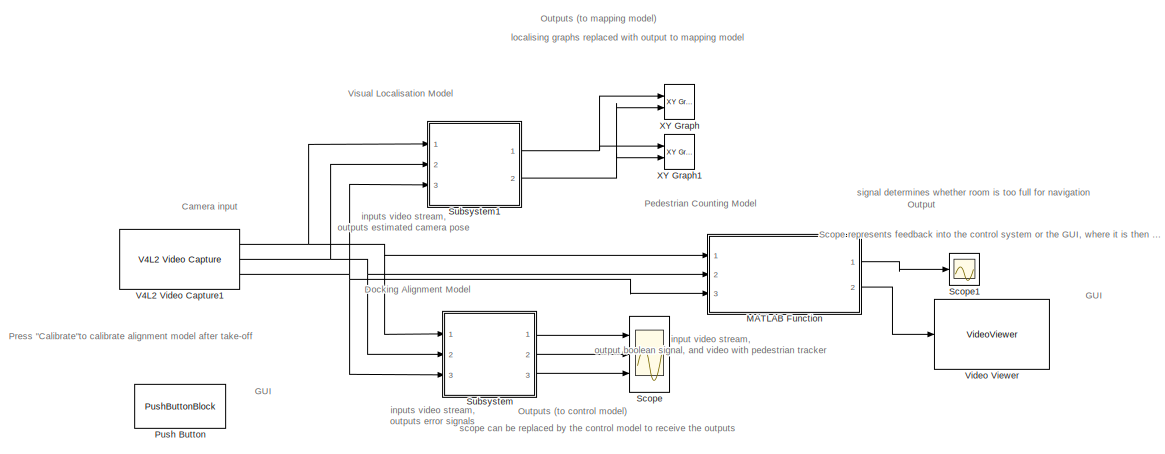
[diagram: root canvas - part 1/2, central region]
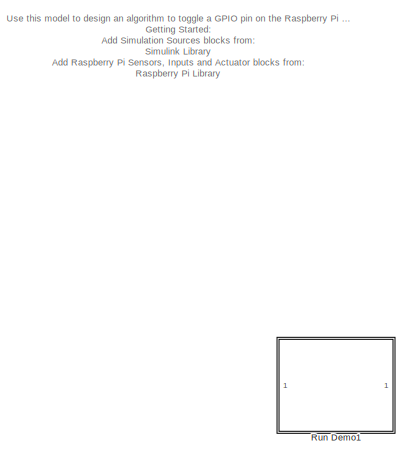
[diagram: root canvas - part 2/2, middle left region]
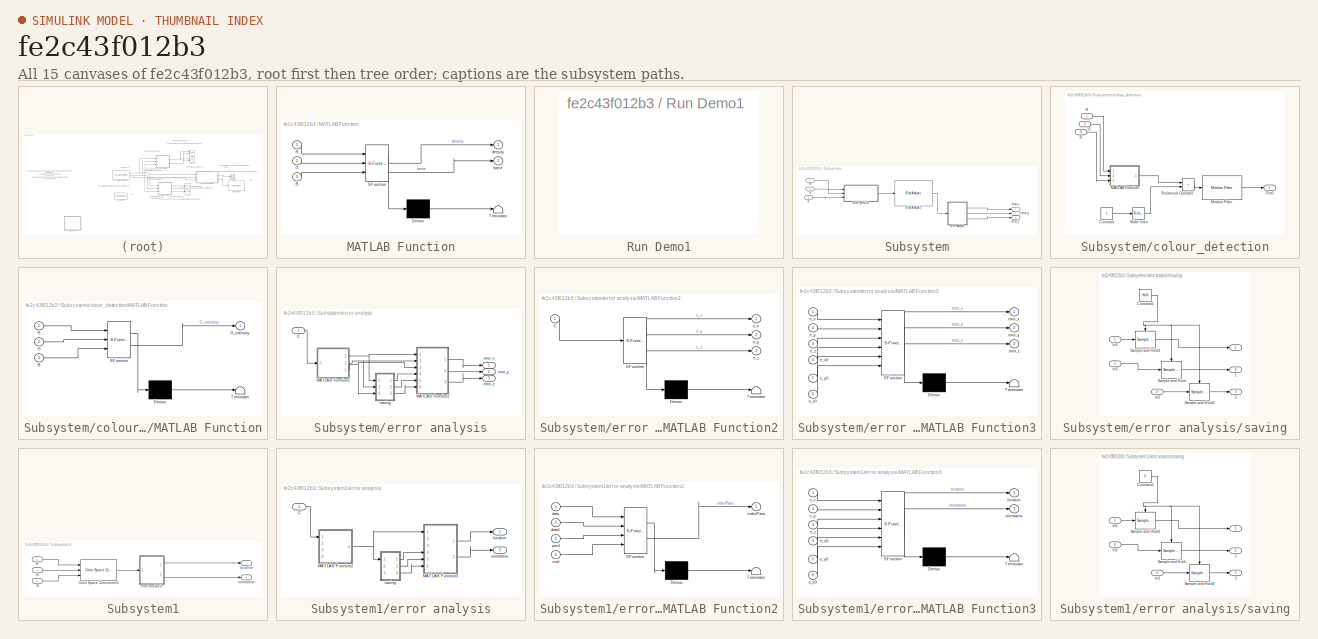
[diagram: thumbnail index - all 15 canvases of the model, root first then tree order]
MODEL slx_fe2c43f012b3
KIND model
CONFIG AbsTol = auto
CONFIG EnableMultiTasking = on
CONFIG FixedStep = auto
CONFIG MaxStep = auto
CONFIG MinStep = auto
CONFIG RelTol = 1e-3
CONFIG SampleTimeConstraint = Unconstrained
CONFIG Solver = ode45
CONFIG SolverName = ode45
CONFIG StartTime = 0.0
CONFIG StopTime = 10.0
BLOCK [SubSystem] MATLAB Function
  ErrorFcn = Stateflow.Translate.translate
  PermitHierarchicalResolution = ExplicitOnly
  Ports = [3, 2]
  RequestExecContextInheritance = off
  SFBlockType = MATLAB Function
  TreatAsAtomicUnit = on
BLOCK [Demux] MATLAB Function/ Demux 
  Outputs = 1
  Ports = [1, 1]
BLOCK [S-Function] MATLAB Function/ SFunction 
  EnableBusSupport = on
  FunctionName = sf_sfun
  PortCounts = [3 3]
  Ports = [3, 3]
  SFcnIsStateOwnerBlock = off
  SFunctionDeploymentMode = off
  Tag = Stateflow S-Function 5
BLOCK [Terminator] MATLAB Function/ Terminator 
BLOCK [Inport] MATLAB Function/B
  Port = 3
BLOCK [Inport] MATLAB Function/G
  Port = 2
BLOCK [Inport] MATLAB Function/R
BLOCK [Outport] MATLAB Function/density
BLOCK [Outport] MATLAB Function/frame
  Port = 2
BLOCK [PushButtonBlock] Push Button
  ButtonText = Callibrate
BLOCK [SubSystem] Run Demo1
  Description = Controls host-side RTDX processing.
  Ports = []
  RequestExecContextInheritance = off
  ShowPortLabels = none
  UserDataPersistent = on
BLOCK [Scope] Scope
  Floating = off
  NumInputPorts = 3
  Ports = [3]
  ScopeSpecificationString = Simulink.scopes.TimeScopeBlockCfg('CurrentConfiguration', extmgr.ConfigurationSet(extmgr.Configuration('Core','General UI',true),extmgr.Configuration('Core','Source UI',true),extmgr.Configuration('Sources','WiredSimulink',true),extmgr.Configuration('Visuals','Time Domain',true,'SerializedDisplays',{struct('MinYLimReal','-22.18632','MaxYLimReal','63.88228','YLabelReal','','MinYLimMag','0.00000','Ma...<+1409ch>
BLOCK [Scope] Scope1
  Floating = off
  NumInputPorts = 1
  Ports = [1]
  ScopeSpecificationString = Simulink.scopes.TimeScopeBlockCfg('CurrentConfiguration', extmgr.ConfigurationSet(extmgr.Configuration('Core','General UI',true),extmgr.Configuration('Core','Source UI',true),extmgr.Configuration('Sources','WiredSimulink',true,'DataLoggingVariableName','ScopeData1'),extmgr.Configuration('Visuals','Time Domain',true),extmgr.Configuration('Tools','Plot Navigation',true),extmgr.Configuration('Tools',...<+40ch>
BLOCK [SubSystem] Subsystem
  Ports = [3, 3]
  RequestExecContextInheritance = off
BLOCK [Inport] Subsystem/B
  Port = 3
BLOCK [Reference] Subsystem/Blob Analysis  REF=visionstatistics/Blob Analysis
  Ports = [1, 1]
  SourceBlock = visionstatistics/Blob Analysis
  SourceProductBaseCode = VP
  SourceType = Blob Analysis
  Tag = vipblks_row_conv
BLOCK [Inport] Subsystem/G
  Port = 2
BLOCK [Inport] Subsystem/R
BLOCK [SubSystem] Subsystem/colour_detection
  Ports = [3, 1]
  RequestExecContextInheritance = off
BLOCK [Inport] Subsystem/colour_detection/B
  Port = 3
BLOCK [Constant] Subsystem/colour_detection/Constant
BLOCK [Inport] Subsystem/colour_detection/G
  Port = 2
BLOCK [SubSystem] Subsystem/colour_detection/MATLAB Function
  ErrorFcn = Stateflow.Translate.translate
  PermitHierarchicalResolution = ExplicitOnly
  Ports = [3, 1]
  RequestExecContextInheritance = off
  SFBlockType = MATLAB Function
  TreatAsAtomicUnit = on
BLOCK [Demux] Subsystem/colour_detection/MATLAB Function/ Demux 
  Outputs = 1
  Ports = [1, 1]
BLOCK [S-Function] Subsystem/colour_detection/MATLAB Function/ SFunction 
  EnableBusSupport = on
  FunctionName = sf_sfun
  PortCounts = [3 2]
  Ports = [3, 2]
  SFcnIsStateOwnerBlock = off
  SFunctionDeploymentMode = off
  Tag = Stateflow S-Function 2
BLOCK [Terminator] Subsystem/colour_detection/MATLAB Function/ Terminator 
BLOCK [Inport] Subsystem/colour_detection/MATLAB Function/B
  Port = 3
BLOCK [Inport] Subsystem/colour_detection/MATLAB Function/G
  Port = 2
BLOCK [Outport] Subsystem/colour_detection/MATLAB Function/G_intensity
BLOCK [Inport] Subsystem/colour_detection/MATLAB Function/R
BLOCK [Reference] Subsystem/colour_detection/Median Filter  REF=visionanalysis/Median Filter
  Ports = [1, 1]
  SourceBlock = visionanalysis/Median Filter
  SourceProductBaseCode = VP
  SourceType = Median Filter
BLOCK [Outport] Subsystem/colour_detection/Out1
BLOCK [Inport] Subsystem/colour_detection/R
BLOCK [RelationalOperator] Subsystem/colour_detection/Relational Operator
  InputSameDT = off
  Operator = >
  OutDataTypeStr = boolean
  Ports = [2, 1]
  RndMeth = Simplest
BLOCK [Reference] Subsystem/colour_detection/Slider Gain  REF=simulink/Math
Operations/Slider
Gain
  Ports = [1, 1]
  SourceBlock = simulink/Math\nOperations/Slider\nGain
  SourceProductBaseCode = SL
  SourceType = Slider Gain
BLOCK [SubSystem] Subsystem/error analysis
  Ports = [1, 3]
  RequestExecContextInheritance = off
BLOCK [Inport] Subsystem/error analysis/C
BLOCK [SubSystem] Subsystem/error analysis/MATLAB Function2
  ErrorFcn = Stateflow.Translate.translate
  PermitHierarchicalResolution = ExplicitOnly
  Ports = [1, 3]
  RequestExecContextInheritance = off
  SFBlockType = MATLAB Function
  TreatAsAtomicUnit = on
BLOCK [Demux] Subsystem/error analysis/MATLAB Function2/ Demux 
  Outputs = 1
  Ports = [1, 1]
BLOCK [S-Function] Subsystem/error analysis/MATLAB Function2/ SFunction 
  EnableBusSupport = on
  FunctionName = sf_sfun
  PortCounts = [1 4]
  Ports = [1, 4]
  SFcnIsStateOwnerBlock = off
  SFunctionDeploymentMode = off
  Tag = Stateflow S-Function 3
BLOCK [Terminator] Subsystem/error analysis/MATLAB Function2/ Terminator 
BLOCK [Inport] Subsystem/error analysis/MATLAB Function2/C
BLOCK [Outport] Subsystem/error analysis/MATLAB Function2/e_x
BLOCK [Outport] Subsystem/error analysis/MATLAB Function2/e_y
  Port = 2
BLOCK [Outport] Subsystem/error analysis/MATLAB Function2/e_z
  Port = 3
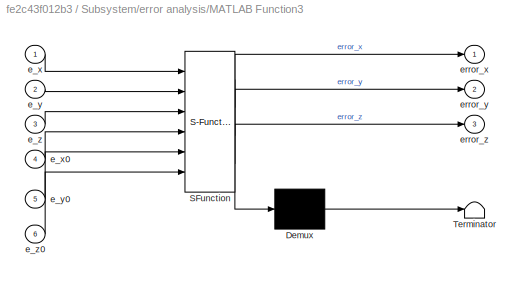
BLOCK [SubSystem] Subsystem/error analysis/MATLAB Function3
  ErrorFcn = Stateflow.Translate.translate
  PermitHierarchicalResolution = ExplicitOnly
  Ports = [6, 3]
  RequestExecContextInheritance = off
  SFBlockType = MATLAB Function
  TreatAsAtomicUnit = on
BLOCK [Demux] Subsystem/error analysis/MATLAB Function3/ Demux 
  Outputs = 1
  Ports = [1, 1]
BLOCK [S-Function] Subsystem/error analysis/MATLAB Function3/ SFunction 
  EnableBusSupport = on
  FunctionName = sf_sfun
  PortCounts = [6 4]
  Ports = [6, 4]
  SFcnIsStateOwnerBlock = off
  SFunctionDeploymentMode = off
  Tag = Stateflow S-Function 4
BLOCK [Terminator] Subsystem/error analysis/MATLAB Function3/ Terminator 
BLOCK [Inport] Subsystem/error analysis/MATLAB Function3/e_x
BLOCK [Inport] Subsystem/error analysis/MATLAB Function3/e_x0
  Port = 4
BLOCK [Inport] Subsystem/error analysis/MATLAB Function3/e_y
  Port = 2
BLOCK [Inport] Subsystem/error analysis/MATLAB Function3/e_y0
  Port = 5
BLOCK [Inport] Subsystem/error analysis/MATLAB Function3/e_z
  Port = 3
BLOCK [Inport] Subsystem/error analysis/MATLAB Function3/e_z0
  Port = 6
BLOCK [Outport] Subsystem/error analysis/MATLAB Function3/error_x
BLOCK [Outport] Subsystem/error analysis/MATLAB Function3/error_y
  Port = 2
BLOCK [Outport] Subsystem/error analysis/MATLAB Function3/error_z
  Port = 3
BLOCK [Outport] Subsystem/error analysis/error_x
BLOCK [Outport] Subsystem/error analysis/error_y
  Port = 2
BLOCK [Outport] Subsystem/error analysis/error_z
  Port = 3
BLOCK [SubSystem] Subsystem/error analysis/saving
  Ports = [3, 3]
  RequestExecContextInheritance = off
BLOCK [Outport] Subsystem/error analysis/saving/ 
BLOCK [Outport] Subsystem/error analysis/saving/ 1
  Port = 2
BLOCK [Outport] Subsystem/error analysis/saving/ 2
  Port = 3
BLOCK [Constant] Subsystem/error analysis/saving/Constant1
  Value = NaN
BLOCK [Inport] Subsystem/error analysis/saving/In1
BLOCK [Inport] Subsystem/error analysis/saving/In2
  Port = 2
BLOCK [Inport] Subsystem/error analysis/saving/In3
  Port = 3
BLOCK [Reference] Subsystem/error analysis/saving/Sample and Hold  REF=dspsigops/Sample
and Hold
  Ports = [1, 1, 0, 1]
  SourceBlock = dspsigops/Sample\nand Hold
  SourceProductBaseCode = DS
  SourceType = Sample and Hold
BLOCK [Reference] Subsystem/error analysis/saving/Sample and Hold1  REF=dspsigops/Sample
and Hold
  Ports = [1, 1, 0, 1]
  SourceBlock = dspsigops/Sample\nand Hold
  SourceProductBaseCode = DS
  SourceType = Sample and Hold
BLOCK [Reference] Subsystem/error analysis/saving/Sample and Hold2  REF=dspsigops/Sample
and Hold
  Ports = [1, 1, 0, 1]
  SourceBlock = dspsigops/Sample\nand Hold
  SourceProductBaseCode = DS
  SourceType = Sample and Hold
BLOCK [Outport] Subsystem/error_x
BLOCK [Outport] Subsystem/error_y
  Port = 2
BLOCK [Outport] Subsystem/error_z
  Port = 3
BLOCK [SubSystem] Subsystem1
  Ports = [3, 2]
  RequestExecContextInheritance = off
BLOCK [Inport] Subsystem1/B
  Port = 3
BLOCK [Reference] Subsystem1/Color Space Conversion1  REF=visionconversions/Color Space
 Conversion
  Ports = [3, 1]
  SourceBlock = visionconversions/Color Space\n Conversion
  SourceProductBaseCode = VP
  SourceType = Color Space Conversion
BLOCK [Inport] Subsystem1/G
  Port = 2
BLOCK [Inport] Subsystem1/R
BLOCK [SubSystem] Subsystem1/error analysis
  Ports = [1, 2]
  RequestExecContextInheritance = off
BLOCK [Inport] Subsystem1/error analysis/C
BLOCK [SubSystem] Subsystem1/error analysis/MATLAB Function2
  ErrorFcn = Stateflow.Translate.translate
  PermitHierarchicalResolution = ExplicitOnly
  Ports = [4, 1]
  RequestExecContextInheritance = off
  SFBlockType = MATLAB Function
  TreatAsAtomicUnit = on
BLOCK [Demux] Subsystem1/error analysis/MATLAB Function2/ Demux 
  Outputs = 1
  Ports = [1, 1]
BLOCK [S-Function] Subsystem1/error analysis/MATLAB Function2/ SFunction 
  EnableBusSupport = on
  FunctionName = sf_sfun
  PortCounts = [4 2]
  Ports = [4, 2]
  SFcnIsStateOwnerBlock = off
  SFunctionDeploymentMode = off
  Tag = Stateflow S-Function 8
BLOCK [Terminator] Subsystem1/error analysis/MATLAB Function2/ Terminator 
BLOCK [Inport] Subsystem1/error analysis/MATLAB Function2/currI
  Port = 4
BLOCK [Inport] Subsystem1/error analysis/MATLAB Function2/data
BLOCK [Inport] Subsystem1/error analysis/MATLAB Function2/data1
  Port = 2
BLOCK [Outport] Subsystem1/error analysis/MATLAB Function2/indexPairs
BLOCK [Inport] Subsystem1/error analysis/MATLAB Function2/prevI
  Port = 3
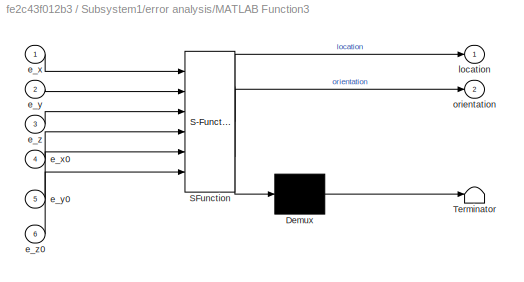
BLOCK [SubSystem] Subsystem1/error analysis/MATLAB Function3
  ErrorFcn = Stateflow.Translate.translate
  PermitHierarchicalResolution = ExplicitOnly
  Ports = [6, 2]
  RequestExecContextInheritance = off
  SFBlockType = MATLAB Function
  TreatAsAtomicUnit = on
BLOCK [Demux] Subsystem1/error analysis/MATLAB Function3/ Demux 
  Outputs = 1
  Ports = [1, 1]
BLOCK [S-Function] Subsystem1/error analysis/MATLAB Function3/ SFunction 
  EnableBusSupport = on
  FunctionName = sf_sfun
  PortCounts = [6 3]
  Ports = [6, 3]
  SFcnIsStateOwnerBlock = off
  SFunctionDeploymentMode = off
  Tag = Stateflow S-Function 9
BLOCK [Terminator] Subsystem1/error analysis/MATLAB Function3/ Terminator 
BLOCK [Inport] Subsystem1/error analysis/MATLAB Function3/e_x
BLOCK [Inport] Subsystem1/error analysis/MATLAB Function3/e_x0
  Port = 4
BLOCK [Inport] Subsystem1/error analysis/MATLAB Function3/e_y
  Port = 2
BLOCK [Inport] Subsystem1/error analysis/MATLAB Function3/e_y0
  Port = 5
BLOCK [Inport] Subsystem1/error analysis/MATLAB Function3/e_z
  Port = 3
BLOCK [Inport] Subsystem1/error analysis/MATLAB Function3/e_z0
  Port = 6
BLOCK [Outport] Subsystem1/error analysis/MATLAB Function3/location
BLOCK [Outport] Subsystem1/error analysis/MATLAB Function3/orientation
  Port = 2
BLOCK [Outport] Subsystem1/error analysis/location
BLOCK [Outport] Subsystem1/error analysis/orientation
  Port = 2
BLOCK [SubSystem] Subsystem1/error analysis/saving
  Ports = [3, 3]
  RequestExecContextInheritance = off
BLOCK [Outport] Subsystem1/error analysis/saving/ 
BLOCK [Outport] Subsystem1/error analysis/saving/ 1
  Port = 2
BLOCK [Outport] Subsystem1/error analysis/saving/ 2
  Port = 3
BLOCK [Constant] Subsystem1/error analysis/saving/Constant1
  Value = 0
BLOCK [Inport] Subsystem1/error analysis/saving/In1
BLOCK [Inport] Subsystem1/error analysis/saving/In2
  Port = 2
BLOCK [Inport] Subsystem1/error analysis/saving/In3
  Port = 3
BLOCK [Reference] Subsystem1/error analysis/saving/Sample and Hold  REF=dspsigops/Sample
and Hold
  Ports = [1, 1, 0, 1]
  SourceBlock = dspsigops/Sample\nand Hold
  SourceProductBaseCode = DS
  SourceType = Sample and Hold
BLOCK [Reference] Subsystem1/error analysis/saving/Sample and Hold1  REF=dspsigops/Sample
and Hold
  Ports = [1, 1, 0, 1]
  SourceBlock = dspsigops/Sample\nand Hold
  SourceProductBaseCode = DS
  SourceType = Sample and Hold
BLOCK [Reference] Subsystem1/error analysis/saving/Sample and Hold2  REF=dspsigops/Sample
and Hold
  Ports = [1, 1, 0, 1]
  SourceBlock = dspsigops/Sample\nand Hold
  SourceProductBaseCode = DS
  SourceType = Sample and Hold
BLOCK [Outport] Subsystem1/location
BLOCK [Outport] Subsystem1/orientation
  Port = 2
BLOCK [Reference] V4L2 Video Capture1  REF=embdlinuxlib/V4L2 Video Capture
  Ports = [0, 3]
  SourceBlock = embdlinuxlib/V4L2 Video Capture
  SourceProductBaseCode = SC_BEAGLEBONE_BLUE,RASPPI
  SourceType = V4L2 Video Capture
BLOCK [VideoViewer] Video Viewer
  FigPos = [2041 741 418 304]
  Ports = [1]
  ScopeSpecificationString = vipscopes.VideoViewerScopeCfg('CurrentConfiguration', extmgr.ConfigurationSet(extmgr.Configuration('Core','General UI',true),extmgr.Configuration('Core','Source UI',true),extmgr.Configuration('Sources','WiredSimulink',true),extmgr.Configuration('Visuals','Video',true),extmgr.Configuration('Tools','Image Navigation Tools',true),extmgr.Configuration('Tools','Image Tool',true),extmgr.Configuration('T...<+76ch>
BLOCK [Reference] XY Graph  REF=simulink/Sinks/XY Graph
  Ports = [2]
  SourceBlock = simulink/Sinks/XY Graph
  SourceProductBaseCode = SL
  SourceType = XY scope.
BLOCK [Reference] XY Graph1  REF=simulink/Sinks/XY Graph
  Ports = [2]
  SourceBlock = simulink/Sinks/XY Graph
  SourceProductBaseCode = SL
  SourceType = XY scope.
ANNOTATION (root): input video stream, output boolean signal, and video with pedestrian tracker
ANNOTATION (root): Use this model to design an algorithm to toggle a GPIO pin on the Raspberry Pi Hardware. Getting Started: Add Simulation Sources blocks from: Simulink Library Add Raspberry Pi Sensors, Inputs and Actuator blocks from: Raspberry Pi Library Configure Raspberry Pi Hardware: Open Model Configuration Parameters dialog Under the Hardware Implementation option, select the Raspberry Pi hardware from the H...<+325ch>
ANNOTATION (root): Docking Alignment Model
ANNOTATION (root): GUI
ANNOTATION (root): Output
ANNOTATION (root): Outputs (to control model)
ANNOTATION (root): Outputs (to mapping model)
ANNOTATION (root): Pedestrian Counting Model
ANNOTATION (root): Visual Localisation Model
ANNOTATION (root): Camera input
ANNOTATION (root): Press "Calibrate"to calibrate alignment model after take-off
ANNOTATION (root): Scope represents feedback into the control system or the GUI, where it is then decided what to do with the density informattion witht eh assistance of manual control
ANNOTATION (root): inputs video stream, outputs error signals
ANNOTATION (root): inputs video stream, outputs estimated camera pose
ANNOTATION (root): localising graphs replaced with output to mapping model
ANNOTATION (root): scope can be replaced by the control model to receive the outputs
ANNOTATION (root): signal determines whether room is too full for navigation
LINE MATLAB Function:1 -> Scope1:1
LINE MATLAB Function:2 -> Video Viewer:1
LINE Subsystem/B:1 -> Subsystem/colour_detection:3
LINE Subsystem/Blob Analysis:1 -> Subsystem/error analysis:1
LINE Subsystem/G:1 -> Subsystem/colour_detection:2
LINE Subsystem/R:1 -> Subsystem/colour_detection:1
LINE Subsystem/colour_detection/B:1 -> Subsystem/colour_detection/MATLAB Function:3
LINE Subsystem/colour_detection/Constant:1 -> Subsystem/colour_detection/Slider Gain:1
LINE Subsystem/colour_detection/G:1 -> Subsystem/colour_detection/MATLAB Function:2
LINE Subsystem/colour_detection/MATLAB Function:1 -> Subsystem/colour_detection/Relational Operator:1
LINE Subsystem/colour_detection/Median Filter:1 -> Subsystem/colour_detection/Out1:1
LINE Subsystem/colour_detection/R:1 -> Subsystem/colour_detection/MATLAB Function:1
LINE Subsystem/colour_detection/Relational Operator:1 -> Subsystem/colour_detection/Median Filter:1
LINE Subsystem/colour_detection/Slider Gain:1 -> Subsystem/colour_detection/Relational Operator:2
LINE Subsystem/colour_detection:1 -> Subsystem/Blob Analysis:1
LINE Subsystem/error analysis/C:1 -> Subsystem/error analysis/MATLAB Function2:1
NET Subsystem/error analysis/MATLAB Function2:1 -> Subsystem/error analysis/MATLAB Function3:1, Subsystem/error analysis/saving:1
NET Subsystem/error analysis/MATLAB Function2:2 -> Subsystem/error analysis/MATLAB Function3:2, Subsystem/error analysis/saving:2
NET Subsystem/error analysis/MATLAB Function2:3 -> Subsystem/error analysis/MATLAB Function3:3, Subsystem/error analysis/saving:3
LINE Subsystem/error analysis/MATLAB Function3:1 -> Subsystem/error analysis/error_x:1
LINE Subsystem/error analysis/MATLAB Function3:2 -> Subsystem/error analysis/error_y:1
LINE Subsystem/error analysis/MATLAB Function3:3 -> Subsystem/error analysis/error_z:1
NET Subsystem/error analysis/saving/Constant1:1 -> Subsystem/error analysis/saving/Sample and Hold1:trigger, Subsystem/error analysis/saving/Sample and Hold2:trigger, Subsystem/error analysis/saving/Sample and Hold:trigger
LINE Subsystem/error analysis/saving/In1:1 -> Subsystem/error analysis/saving/Sample and Hold1:1
LINE Subsystem/error analysis/saving/In2:1 -> Subsystem/error analysis/saving/Sample and Hold:1
LINE Subsystem/error analysis/saving/In3:1 -> Subsystem/error analysis/saving/Sample and Hold2:1
LINE Subsystem/error analysis/saving/Sample and Hold1:1 -> Subsystem/error analysis/saving/ :1
LINE Subsystem/error analysis/saving/Sample and Hold2:1 -> Subsystem/error analysis/saving/ 2:1
LINE Subsystem/error analysis/saving/Sample and Hold:1 -> Subsystem/error analysis/saving/ 1:1
LINE Subsystem/error analysis/saving:1 -> Subsystem/error analysis/MATLAB Function3:4
LINE Subsystem/error analysis/saving:2 -> Subsystem/error analysis/MATLAB Function3:5
LINE Subsystem/error analysis/saving:3 -> Subsystem/error analysis/MATLAB Function3:6
LINE Subsystem/error analysis:1 -> Subsystem/error_x:1
LINE Subsystem/error analysis:2 -> Subsystem/error_y:1
LINE Subsystem/error analysis:3 -> Subsystem/error_z:1
LINE Subsystem1/B:1 -> Subsystem1/Color Space Conversion1:3
LINE Subsystem1/Color Space Conversion1:1 -> Subsystem1/error analysis:1
LINE Subsystem1/G:1 -> Subsystem1/Color Space Conversion1:2
LINE Subsystem1/R:1 -> Subsystem1/Color Space Conversion1:1
LINE Subsystem1/error analysis/C:1 -> Subsystem1/error analysis/MATLAB Function2:1
NET Subsystem1/error analysis/MATLAB Function2:1 -> Subsystem1/error analysis/MATLAB Function3:1, Subsystem1/error analysis/saving:1
LINE Subsystem1/error analysis/MATLAB Function3:1 -> Subsystem1/error analysis/location:1
LINE Subsystem1/error analysis/MATLAB Function3:2 -> Subsystem1/error analysis/orientation:1
NET Subsystem1/error analysis/saving/Constant1:1 -> Subsystem1/error analysis/saving/Sample and Hold1:trigger, Subsystem1/error analysis/saving/Sample and Hold2:trigger, Subsystem1/error analysis/saving/Sample and Hold:trigger
LINE Subsystem1/error analysis/saving/In1:1 -> Subsystem1/error analysis/saving/Sample and Hold1:1
LINE Subsystem1/error analysis/saving/In2:1 -> Subsystem1/error analysis/saving/Sample and Hold:1
LINE Subsystem1/error analysis/saving/In3:1 -> Subsystem1/error analysis/saving/Sample and Hold2:1
LINE Subsystem1/error analysis/saving/Sample and Hold1:1 -> Subsystem1/error analysis/saving/ :1
LINE Subsystem1/error analysis/saving/Sample and Hold2:1 -> Subsystem1/error analysis/saving/ 2:1
LINE Subsystem1/error analysis/saving/Sample and Hold:1 -> Subsystem1/error analysis/saving/ 1:1
LINE Subsystem1/error analysis/saving:1 -> Subsystem1/error analysis/MATLAB Function3:4
LINE Subsystem1/error analysis/saving:2 -> Subsystem1/error analysis/MATLAB Function3:5
LINE Subsystem1/error analysis/saving:3 -> Subsystem1/error analysis/MATLAB Function3:6
LINE Subsystem1/error analysis:1 -> Subsystem1/location:1
LINE Subsystem1/error analysis:2 -> Subsystem1/orientation:1
NET Subsystem1:1 -> XY Graph1:1, XY Graph:1
NET Subsystem1:2 -> XY Graph1:2, XY Graph:2
LINE Subsystem:1 -> Scope:1
LINE Subsystem:2 -> Scope:2
LINE Subsystem:3 -> Scope:3
NET V4L2 Video Capture1:1 -> MATLAB Function:1, Subsystem1:1, Subsystem:1
NET V4L2 Video Capture1:2 -> MATLAB Function:2, Subsystem1:2, Subsystem:2
NET V4L2 Video Capture1:3 -> MATLAB Function:3, Subsystem1:3, Subsystem:3
note: NET lines group one-source signal fan-out (src -> all destinations, sorted); 1:1 wires keep LINE
CHART Subsystem/colour_detection/MATLAB Function states=1 transitions=1
  STATE_LABEL 'eML_blk_kernel()'
  STATE_LABEL 'SCRIPT:\nfunction G_intensity  = fcn(R,G,B)\n\nG_intensity = G - R./2 - B./2;\n\n'
CHART Subsystem/error analysis/MATLAB Function2 states=1 transitions=1
  STATE_LABEL 'eML_blk_kernel()'
  STATE_LABEL 'SCRIPT:\nfunction [e_x, e_y, e_z] = distances(C) % note everything is in pixels\n\n% input C gives a 3-by-2 matrix in in the form [x1 y1 ; x2 y2 ; x3 y3] of\n% the coordinates of the centroids\n% (possible input that can be obtained from blob analysis is also blob area\n% which can be used to identify the different blobs)\nif length(C)==3\n    C_sorted = sortrows(C); % sort so rows 1-3 correspond to blobs...<+330ch>'
CHART Subsystem/error analysis/MATLAB Function3 states=1 transitions=1
  STATE_LABEL 'eML_blk_kernel()'
  STATE_LABEL 'SCRIPT:\nfunction [error_x,error_y,error_z] = fcn(e_x,e_y,e_z,e_x0,e_y0,e_z0)\n\nerror_x = e_x-e_x0;\nerror_z = e_z-e_z0;\nerror_y = e_y-e_y0;'
CHART MATLAB Function states=1 transitions=1
  STATE_LABEL 'eML_blk_kernel()'
  STATE_LABEL 'SCRIPT:\nfunction [density, frame]= PedestrianTracking(R, G, B)\nframe = [R,G,B];\n[obj, tracks, full, FrameWithTracker] = PedestrianTracker();\nobjs = obj;\ntrackss = tracks;\ndensity = full;\nframe = FrameWithTracker;\n'
CHART Subsystem1/error analysis/MATLAB Function2 states=1 transitions=1
  STATE_LABEL 'eML_blk_kernel()'
  STATE_LABEL "SCRIPT:\nfunction indexPairs  = fcn(data, data1, prevI, currI)\n\nprevPoints = detectSURFFeatures(prevI, 'MetricThreshold', data);\nprevPoints = selectUniform(prevPoints, data1, size(prevI));\nprevFeatures = extractFeatures(prevI, prevPoints, 'Upright', true);\n\ncurrPoints = detectSURFFeatures(currI, 'MetricThreshold', data);\ncurrPoints = selectUniform(currPoints, data1, size(currI));\ncurrFeatures = ext...<+1539ch>"
CHART Subsystem1/error analysis/MATLAB Function3 states=1 transitions=1
  STATE_LABEL 'eML_blk_kernel()'
  STATE_LABEL 'SCRIPT:\nfunction [location, orientation] = fcn(e_x,e_y,e_z,e_x0,e_y0,e_z0)\n\nlocation = e_x-e_x0;\norientation = e_z-e_z0;\n'
CHART  states=0 transitions=0
CHART  states=0 transitions=0
CHART  states=0 transitions=0
CHART  states=0 transitions=0
CHART  states=0 transitions=0
CHART  states=0 transitions=0
